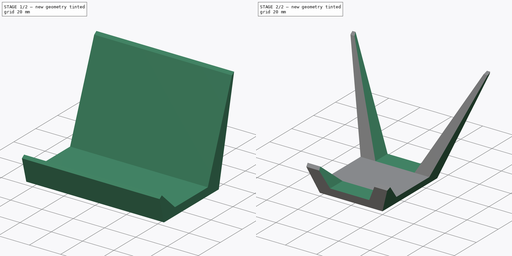
[diagram: build sequence overview — one tinted view per stage of 2, left to right]
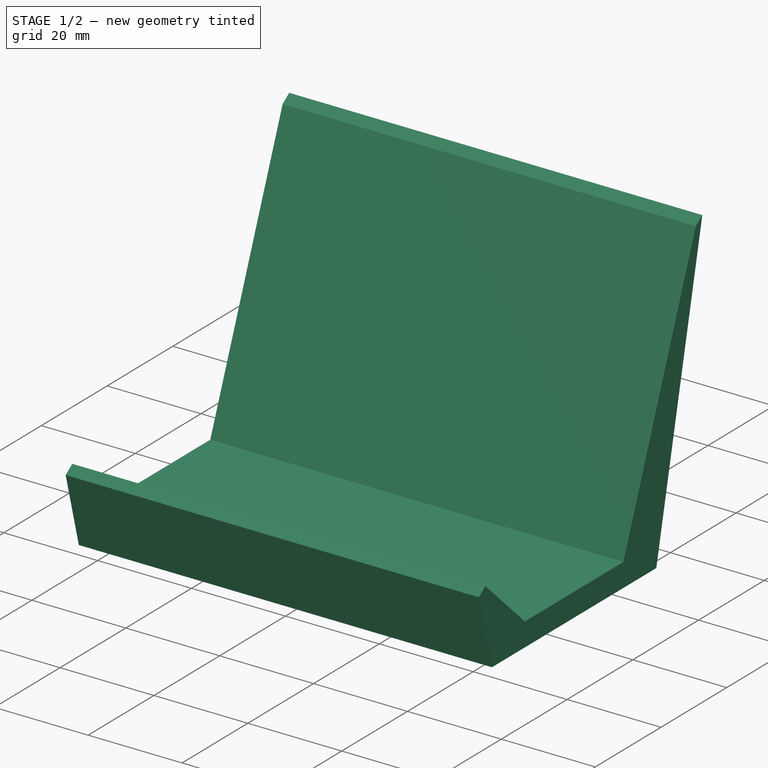
[diagram: stage 1 of 2 — iso view after this stage's code; geometry added in this stage tinted green]
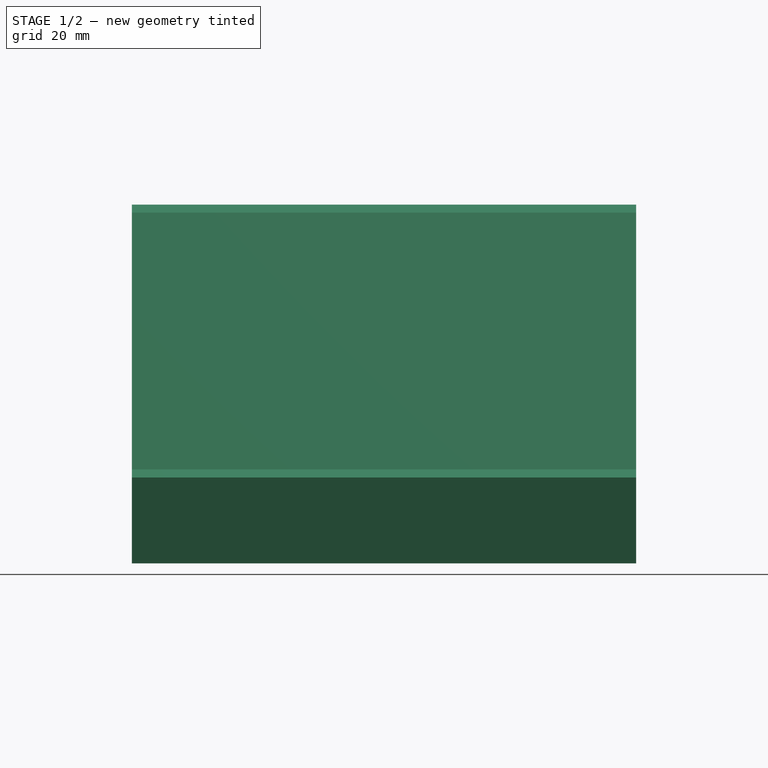
[diagram: stage 1 of 2 — front view after this stage's code; geometry added in this stage tinted green]
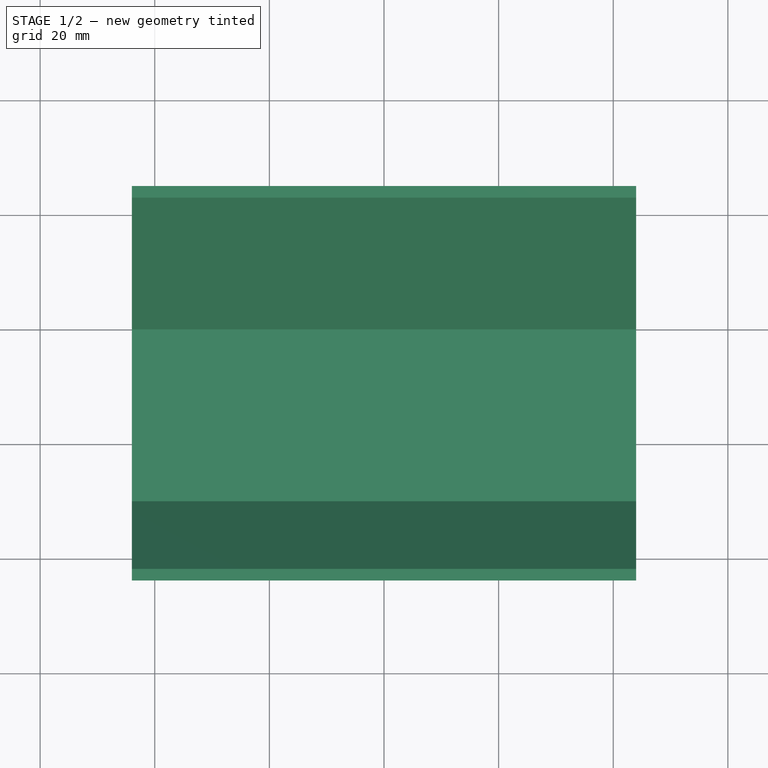
[diagram: stage 1 of 2 — top view after this stage's code; geometry added in this stage tinted green]
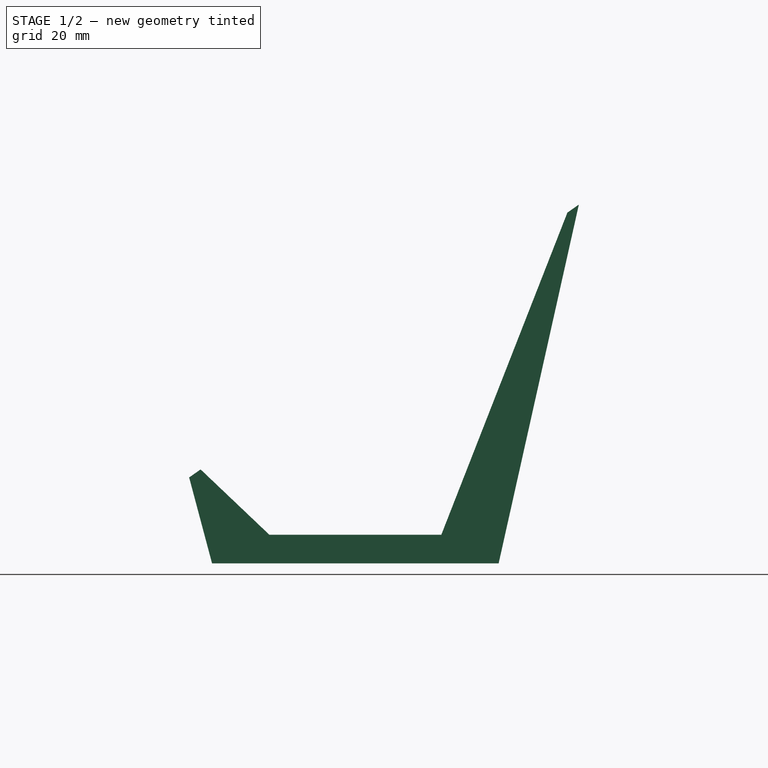
[diagram: stage 1 of 2 — right view after this stage's code; geometry added in this stage tinted green]
FCSTD DOCUMENT  (FreeCAD 0.19R23141 (Git))
Label: gridstand_20deg
License: All rights reserved
LicenseURL: http://en.wikipedia.org/wiki/All_rights_reserved
objects: Sketcher::SketchObject×2, PartDesign::Pad×1, PartDesign::Pocket×1, PartDesign::Body×1
note: 7 computed .brp shape members not serialized (recipe doc carries the construction recipe); baked Part::Feature solids carry a one-line shape summary decoded from their .brp

FEATURE [Sketcher::SketchObject] Sketch
  MapMode = 5
  Placement = pos=(0,0,0) rot=(0.57735,0.57735,0.57735;2.0944rad)
  Support = -> [YZ_Plane]
  sketch-geometry (11):
    g0: LineSegment StartX=30 StartY=0 StartZ=0 EndX=44 EndY=62.6141 EndZ=0
    g1: LineSegment StartX=44 StartY=62.6141 StartZ=0 EndX=42 EndY=61.2137 EndZ=0
    g2: LineSegment StartX=42 StartY=61.2137 StartZ=0 EndX=20 EndY=5 EndZ=0
    g3: LineSegment StartX=-20 StartY=0 StartZ=0 EndX=30 EndY=0 EndZ=0
    g4: LineSegment StartX=20 StartY=5 StartZ=0 EndX=-10 EndY=5 EndZ=0
    g5: LineSegment StartX=-10 StartY=5 StartZ=0 EndX=-22 EndY=16.4004 EndZ=0
    g6: LineSegment StartX=-22 StartY=16.4004 StartZ=0 EndX=-24 EndY=15 EndZ=0
    g7: LineSegment [constr] StartX=42 StartY=61.2137 StartZ=0 EndX=-22 EndY=16.4004 EndZ=0
    g8: LineSegment StartX=-24 StartY=15 StartZ=0 EndX=-20 EndY=0 EndZ=0
    g9: LineSegment [constr] StartX=-24 StartY=15 StartZ=0 EndX=-45.4222 EndY=1.8e-15 EndZ=0
    g10: LineSegment [constr] StartX=-45.4222 StartY=1.8e-15 StartZ=0 EndX=-20 EndY=0 EndZ=0
  constraints (31):
    c: PointOnObject(g0,g-1)
    c: Coincident(g0,g1)
    c: Coincident(g1,g2)
    c: DistanceX(g-1,g0) = 30
    c: DistanceX(g-1,g0) = 44
    c: DistanceX(g1,g1) = 2
    c: PointOnObject(g3,g-1)
    c: Coincident(g3,g0)
    c: DistanceX(g3,g-1) = 20
    c: DistanceX(g2,g0) = 10
    c: Coincident(g2,g4)
    c: Horizontal(g4)
    c: Coincident(g4,g5)
    c: Coincident(g5,g6)
    c: DistanceX(g6,g5) = 2
    c: Coincident(g7,g1)
    c: Coincident(g7,g5)
    c: Parallel(g7,g1)
    c: Coincident(g8,g6)
    c: Coincident(g8,g3)
    c: DistanceY(g-1,g4) = 5
    c: DistanceX(g4,g4) = 30
    c: DistanceX(g6,g3) = 4
    c: Parallel(g6,g7)
    c: Coincident(g9,g6)
    c: PointOnObject(g9,g-1)
    c: Coincident(g10,g9)
    c: Coincident(g10,g3)
    c: Parallel(g9,g6)
    c: Angle(g10,g9) = 0.610865
    c: DistanceY(g3,g6) = 15
FEATURE [PartDesign::Pad] Pad
  Direction = (1,1,1)
  Length = 88
  Length2 = 100
  Midplane = true
  Placement = pos=(0,0,0) rot=(0.57735,0.57735,0.57735;2.0944rad)
  Profile = -> Sketch
  Type = 0
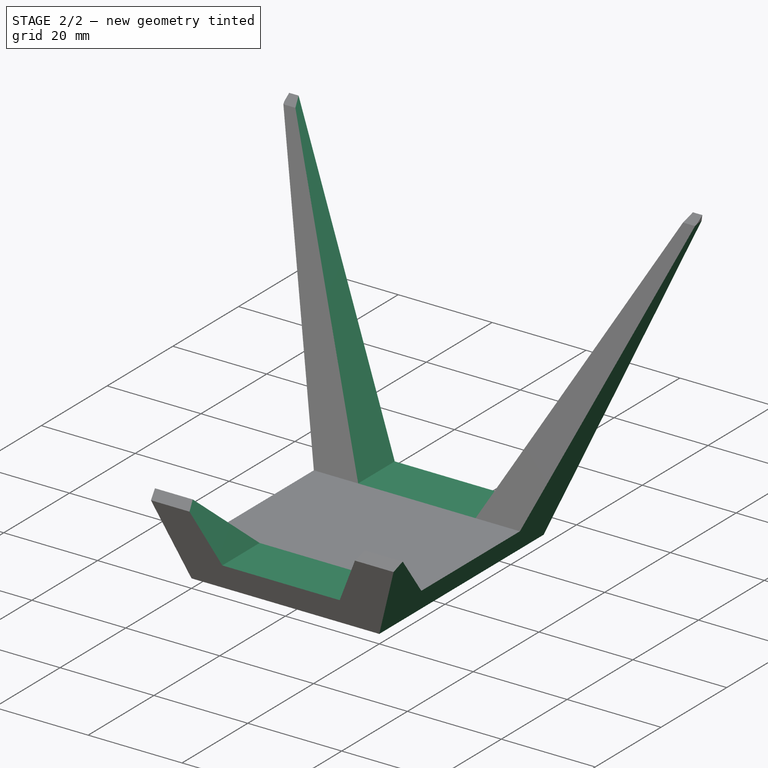
[diagram: stage 2 of 2 — iso view after this stage's code; geometry added in this stage tinted green]
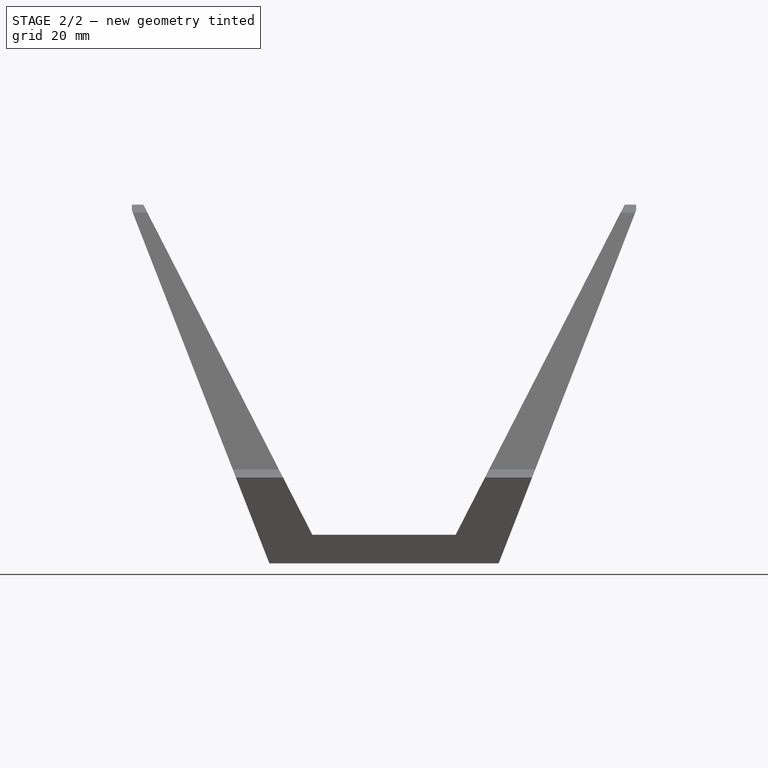
[diagram: stage 2 of 2 — front view after this stage's code; geometry added in this stage tinted green]
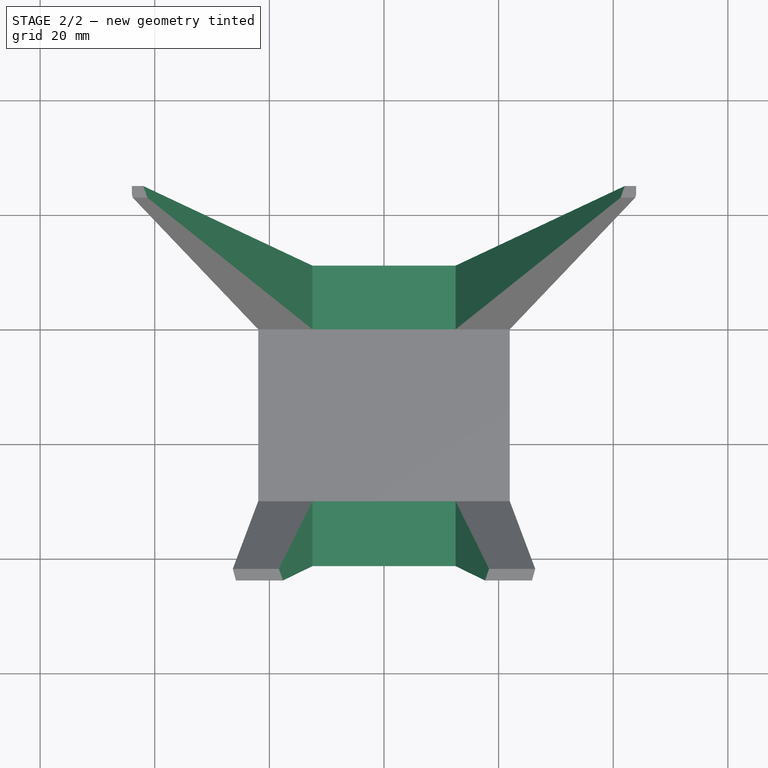
[diagram: stage 2 of 2 — top view after this stage's code; geometry added in this stage tinted green]
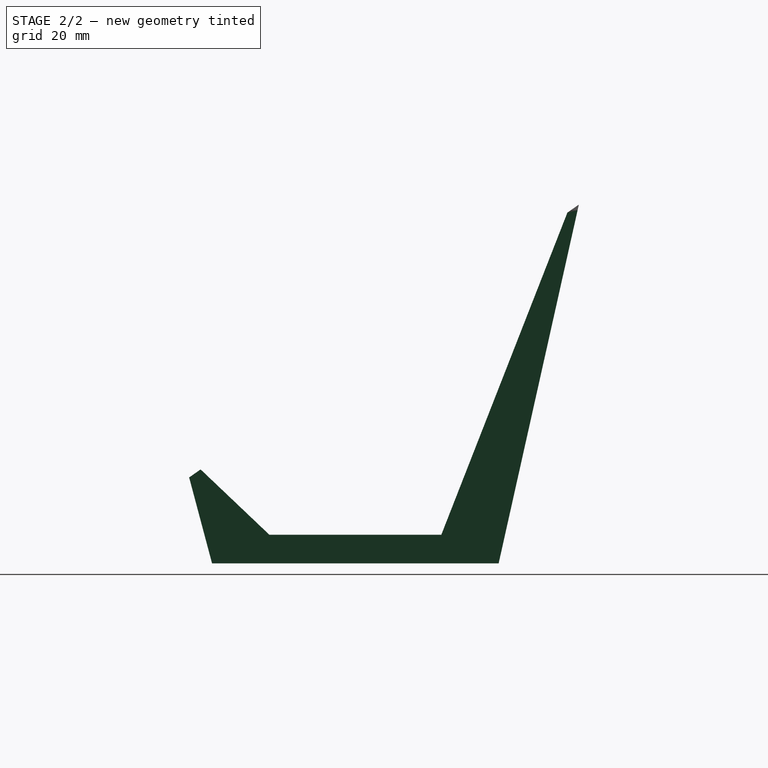
[diagram: stage 2 of 2 — right view after this stage's code; geometry added in this stage tinted green]
FEATURE [Sketcher::SketchObject] Sketch001
  AttachmentOffset = pos=(0,0,0) rot=(0,0,1;4.71239rad)
  ExternalGeometry = -> [Pad]
  MapMode = 5
  Placement = pos=(0,0,0) rot=(-0.57735,-0.57735,0.57735;4.18879rad)
  Support = -> [XZ_Plane]
  sketch-geometry (15):
    g0: LineSegment StartX=0 StartY=-20 StartZ=0 EndX=-61.6141 EndY=-44 EndZ=0
    g1: LineSegment StartX=-61.6141 StartY=-44 StartZ=0 EndX=-62.6141 EndY=-44 EndZ=0
    g2: LineSegment StartX=-62.6141 StartY=-44 StartZ=0 EndX=-62.6141 EndY=-42 EndZ=0
    g3: LineSegment StartX=-62.6141 StartY=-42 StartZ=0 EndX=-5 EndY=-12.5 EndZ=0
    g4: LineSegment StartX=-5 StartY=-12.5 StartZ=0 EndX=-5 EndY=12.5 EndZ=0
    g5: LineSegment StartX=-5 StartY=12.5 StartZ=0 EndX=-62.6141 EndY=42 EndZ=0
    g6: LineSegment StartX=-62.6141 StartY=42 StartZ=0 EndX=-62.6141 EndY=44 EndZ=0
    g7: LineSegment StartX=-62.6141 StartY=44 StartZ=0 EndX=-61.6141 EndY=44 EndZ=0
    g8: LineSegment StartX=-61.6141 StartY=44 StartZ=0 EndX=0 EndY=20 EndZ=0
    g9: LineSegment StartX=0 StartY=20 StartZ=0 EndX=0 EndY=-20 EndZ=0
    g10: LineSegment [constr] StartX=-5 StartY=-12.5 StartZ=0 EndX=0 EndY=0 EndZ=0
    g11: LineSegment [constr] StartX=0 StartY=0 StartZ=0 EndX=-5 EndY=12.5 EndZ=0
    g12: LineSegment [constr] StartX=0 StartY=-20 StartZ=0 EndX=-5 EndY=-12.5 EndZ=0
    g13: LineSegment [constr] StartX=-5 StartY=12.5 StartZ=0 EndX=0 EndY=20 EndZ=0
    g14: Circle CenterX=0 CenterY=0 CenterZ=0 NormalX=0 NormalY=0 NormalZ=1 AngleXU=0 Radius=150
  constraints (40):
    c: PointOnObject(g0,g-2)
    c: Coincident(g0,g1)
    c: Coincident(g1,g2)
    c: Vertical(g2)
    c: Coincident(g2,g3)
    c: Coincident(g3,g4)
    c: Vertical(g4)
    c: Coincident(g4,g5)
    c: Coincident(g5,g6)
    c: Vertical(g6)
    c: Coincident(g6,g7)
    c: Coincident(g7,g8)
    c: PointOnObject(g8,g-2)
    c: Coincident(g8,g9)
    c: Coincident(g9,g0)
    c: Equal(g3,g5)
    c: Equal(g8,g0)
    c: Equal(g2,g6)
    c: Horizontal(g7)
    c: Horizontal(g1)
    c: DistanceY(g1,g6) = 88
    c: Equal(g7,g1)
    c: DistanceX(g1,g1) = 1
    c: Coincident(g3,g10)
    c: Coincident(g10,g-1)
    c: Coincident(g10,g11)
    c: Coincident(g11,g4)
    c: Equal(g11,g10)
    c: DistanceY(g4,g4) = 25
    c: DistanceX(g3,g-1) = 5
    c: Coincident(g12,g0)
    c: Coincident(g12,g3)
    c: Coincident(g13,g4)
    c: Coincident(g13,g8)
    c: Equal(g12,g13)
    c: DistanceY(g9,g9) = 40
    c: DistanceY(g2,g2) = 2
    c: Coincident(g14,g-1)
    c: Radius(g14) = 150
    c: PointOnObject(g2,g-3)
FEATURE [PartDesign::Pocket] Pocket
  BaseFeature = -> Pad
  Length = 5
  Length2 = 100
  Midplane = true
  Placement = pos=(0,0,0) rot=(0.57735,0.57735,0.57735;2.0944rad)
  Profile = -> Sketch001
  Type = 1
FEATURE [PartDesign::Body] Body
  Group = -> [Sketch,Pad,Sketch001,Pocket]
  Origin = -> Origin
  Tip = -> Pocket
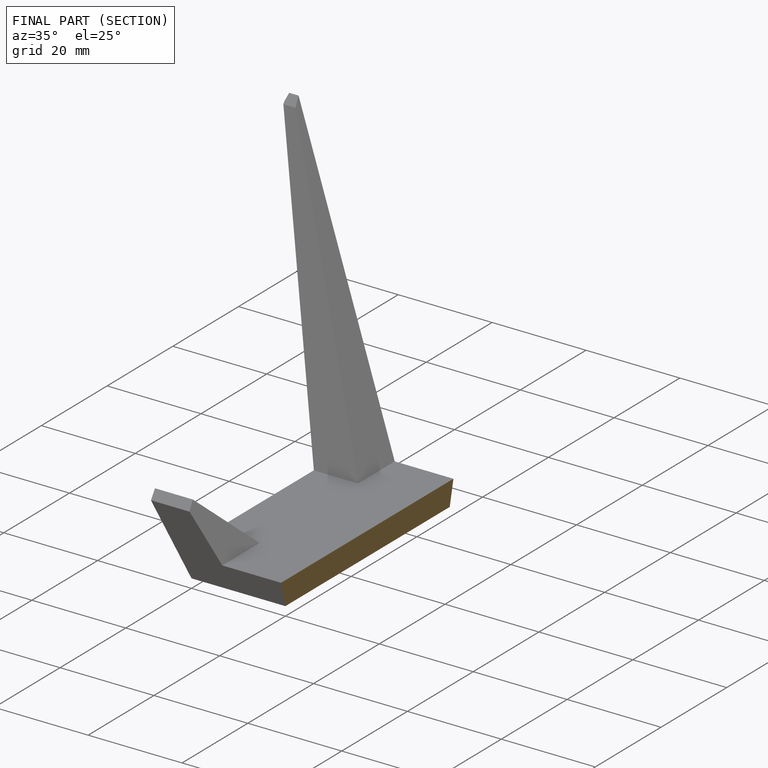
[diagram: finished part — half-section view (interior)]
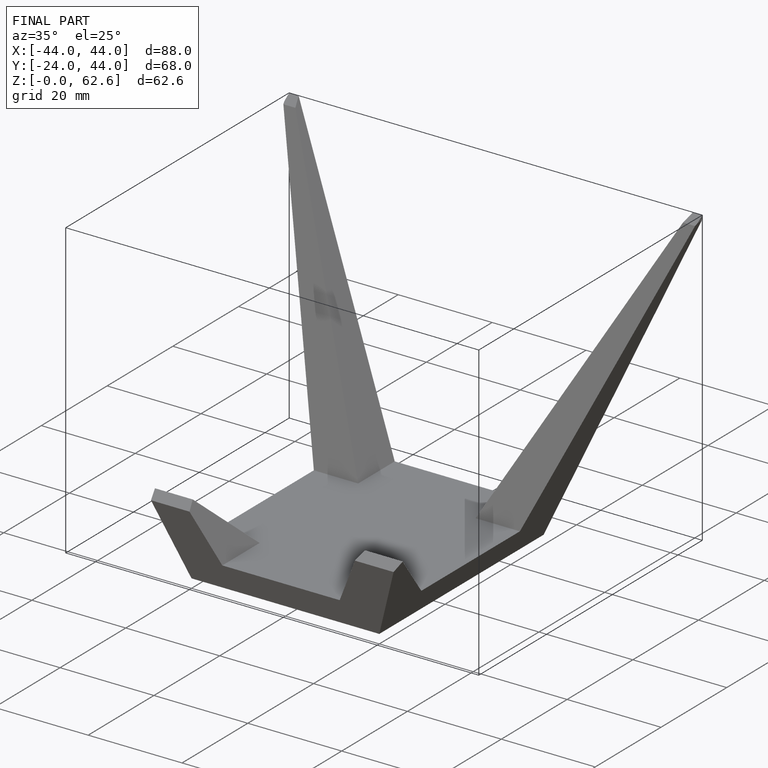
[diagram: finished part — iso view with bounding-box wireframe]
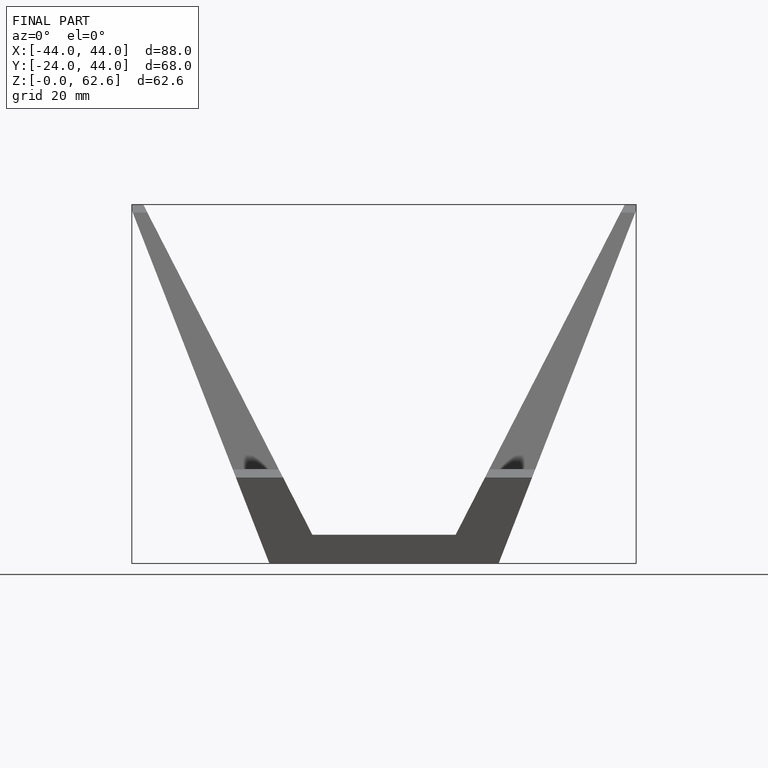
[diagram: finished part — front view with bounding-box wireframe]
